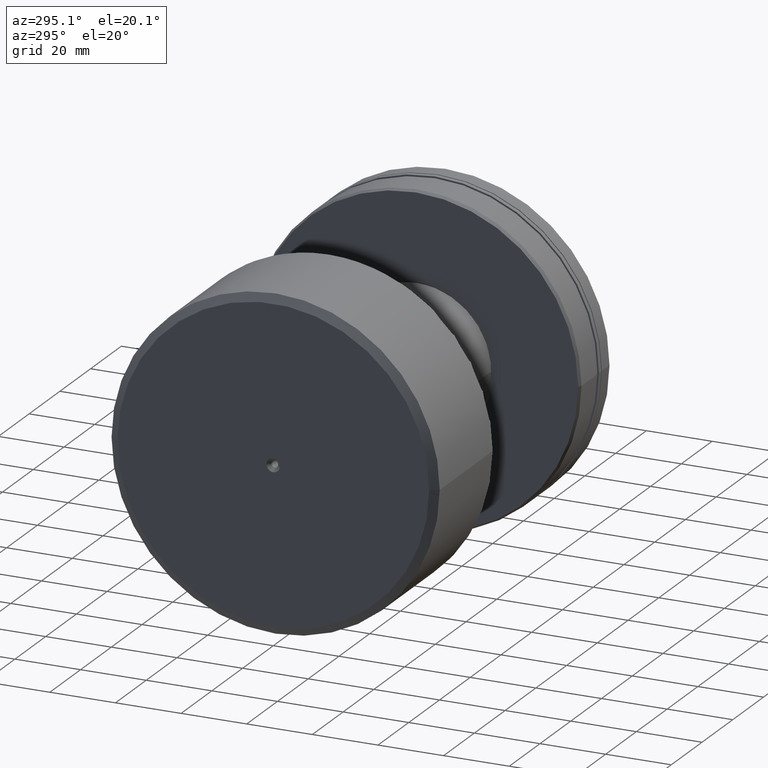
[diagram: clean part render]
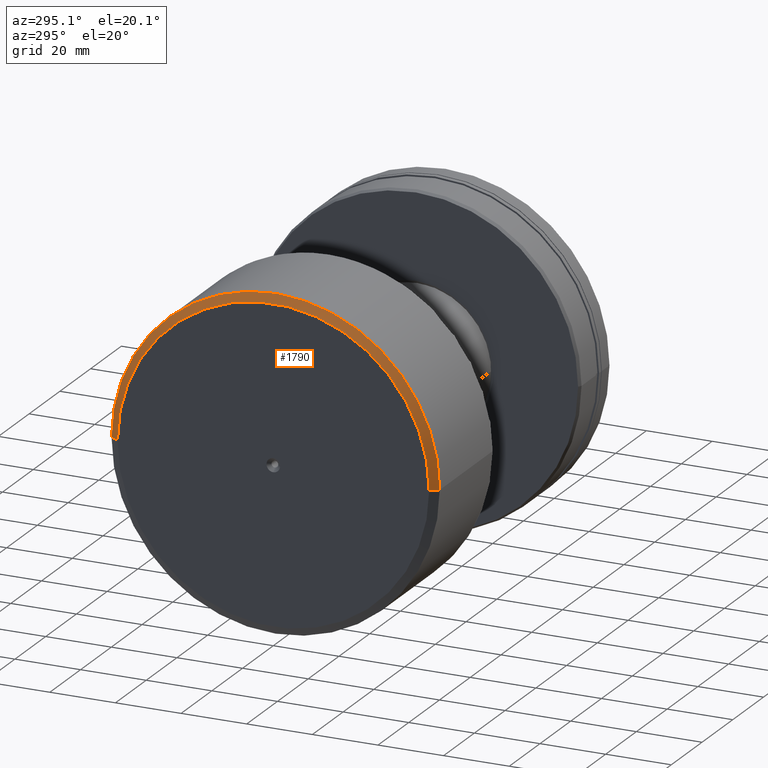
[diagram: same view with one face highlighted and labeled with its STEP entity id]
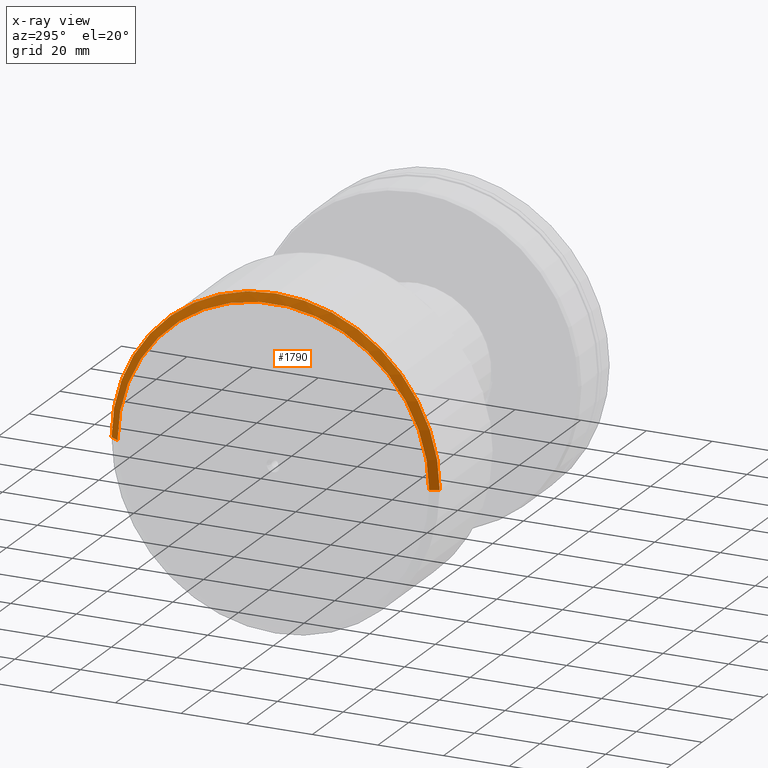
[diagram: x-ray of the same camera — body ghosted, the highlighted face saturated]
A machine part, auxiliary view. The second image highlights one B-rep face of the part: STEP entity #1790.
The next image is the same camera in x-ray: the body ghosted, the highlighted face saturated — about 0% of this face is hidden behind the body in this view.
In plain terms, the highlighted conical surface has half-angle 59.036 deg.
Its self-contained STEP definition (entity closure, byte-faithful):
#63 = CARTESIAN_POINT ( 'NONE',  ( 4.801007089984315887E-15, 47.50000000000000000, 0.000000000000000000 ) ) ;
#103 = ORIENTED_EDGE ( 'NONE', *, *, #727, .F. ) ;
#114 = ORIENTED_EDGE ( 'NONE', *, *, #1851, .T. ) ;
#119 = CARTESIAN_POINT ( 'NONE',  ( 5.309039692967122051E-15, 5.678242641172895614E-32, 0.000000000000000000 ) ) ;
#160 = DIRECTION ( 'NONE',  ( -1.000000000000000000, -1.069542322069065801E-17, -0.000000000000000000 ) ) ;
#255 = CARTESIAN_POINT ( 'NONE',  ( 5.817072295949928215E-15, -47.50000000000000000, 5.970153145843347150E-15 ) ) ;
#265 = VERTEX_POINT ( 'NONE', #1489 ) ;
#315 = AXIS2_PLACEMENT_3D ( 'NONE', #821, #1526, #1351 ) ;
#331 = LINE ( 'NONE', #525, #507 ) ;
#507 = VECTOR ( 'NONE', #1070, 999.9999999999998863 ) ;
#525 = CARTESIAN_POINT ( 'NONE',  ( 5.817072295949928215E-15, -47.50000000000000000, 5.817072295949928215E-15 ) ) ;
#726 = DIRECTION ( 'NONE',  ( 0.5144957554275262357, 0.8574929257125444293, 0.000000000000000000 ) ) ;
#727 = EDGE_CURVE ( 'NONE', #1338, #1295, #1955, .T. ) ;
#772 = CONICAL_SURFACE ( 'NONE', #990, 47.50000000000000000, 1.030376826524312728 ) ;
#792 = CARTESIAN_POINT ( 'NONE',  ( 1.500000000000005551, 50.00000000000000000, 0.000000000000000000 ) ) ;
#803 = VECTOR ( 'NONE', #726, 999.9999999999998863 ) ;
#821 = CARTESIAN_POINT ( 'NONE',  ( 5.309039692967122051E-15, 5.678242641172895614E-32, 0.000000000000000000 ) ) ;
#833 = DIRECTION ( 'NONE',  ( 1.000000000000000000, 1.069542322069065801E-17, 0.000000000000000000 ) ) ;
#872 = DIRECTION ( 'NONE',  ( 8.673617379884035472E-18, -1.000000000000000000, 0.000000000000000000 ) ) ;
#990 = AXIS2_PLACEMENT_3D ( 'NONE', #119, #833, #1539 ) ;
#1045 = CARTESIAN_POINT ( 'NONE',  ( 1.500000000000005995, 1.604313483103604941E-17, 0.000000000000000000 ) ) ;
#1070 = DIRECTION ( 'NONE',  ( 0.5144957554275262357, -0.8574929257125444293, 1.050125966765366654E-16 ) ) ;
#1190 = FACE_OUTER_BOUND ( 'NONE', #1397, .T. ) ;
#1226 = CIRCLE ( 'NONE', #1512, 50.00000000000000000 ) ;
#1295 = VERTEX_POINT ( 'NONE', #63 ) ;
#1338 = VERTEX_POINT ( 'NONE', #255 ) ;
#1349 = ORIENTED_EDGE ( 'NONE', *, *, #2168, .T. ) ;
#1351 = DIRECTION ( 'NONE',  ( 1.069542322069065647E-17, -1.000000000000000000, 0.000000000000000000 ) ) ;
#1397 = EDGE_LOOP ( 'NONE', ( #103, #1349, #114, #1891 ) ) ;
#1489 = CARTESIAN_POINT ( 'NONE',  ( 1.500000000000006217, -50.00000000000000000, 6.123233995736766085E-15 ) ) ;
#1512 = AXIS2_PLACEMENT_3D ( 'NONE', #1045, #160, #872 ) ;
#1526 = DIRECTION ( 'NONE',  ( -1.000000000000000000, -1.069542322069065801E-17, -0.000000000000000000 ) ) ;
#1539 = DIRECTION ( 'NONE',  ( -1.069542322069065647E-17, 1.000000000000000000, 0.000000000000000000 ) ) ;
#1790 = ADVANCED_FACE ( 'NONE', ( #1190 ), #772, .T. ) ;
#1851 = EDGE_CURVE ( 'NONE', #265, #1872, #1226, .T. ) ;
#1872 = VERTEX_POINT ( 'NONE', #792 ) ;
#1891 = ORIENTED_EDGE ( 'NONE', *, *, #2309, .F. ) ;
#1955 = CIRCLE ( 'NONE', #315, 47.50000000000000000 ) ;
#1987 = CARTESIAN_POINT ( 'NONE',  ( 4.801007089984315887E-15, 47.50000000000000000, 0.000000000000000000 ) ) ;
#2158 = LINE ( 'NONE', #1987, #803 ) ;
#2168 = EDGE_CURVE ( 'NONE', #1338, #265, #331, .T. ) ;
#2309 = EDGE_CURVE ( 'NONE', #1295, #1872, #2158, .T. ) ;